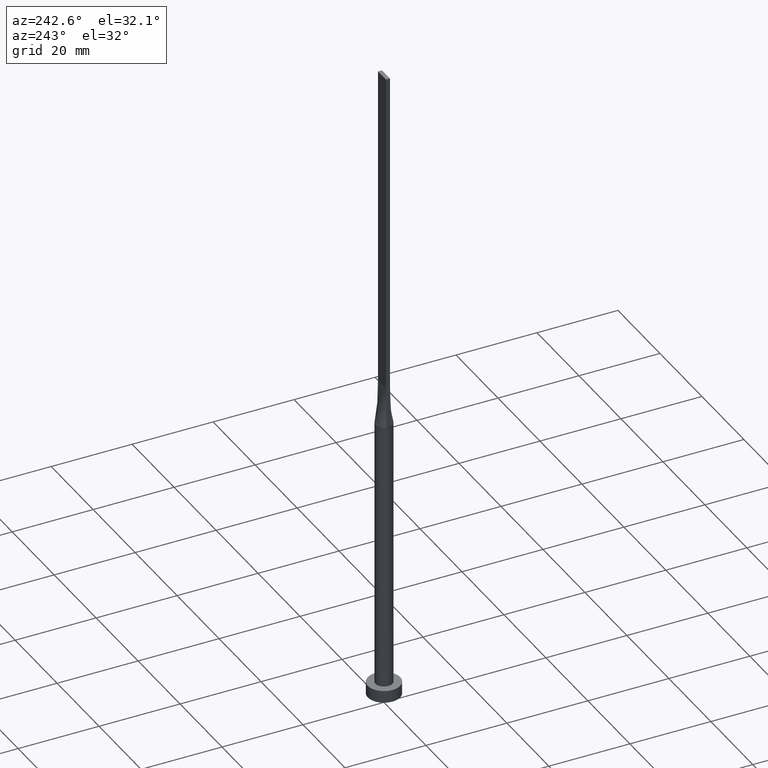
[diagram: clean part render]
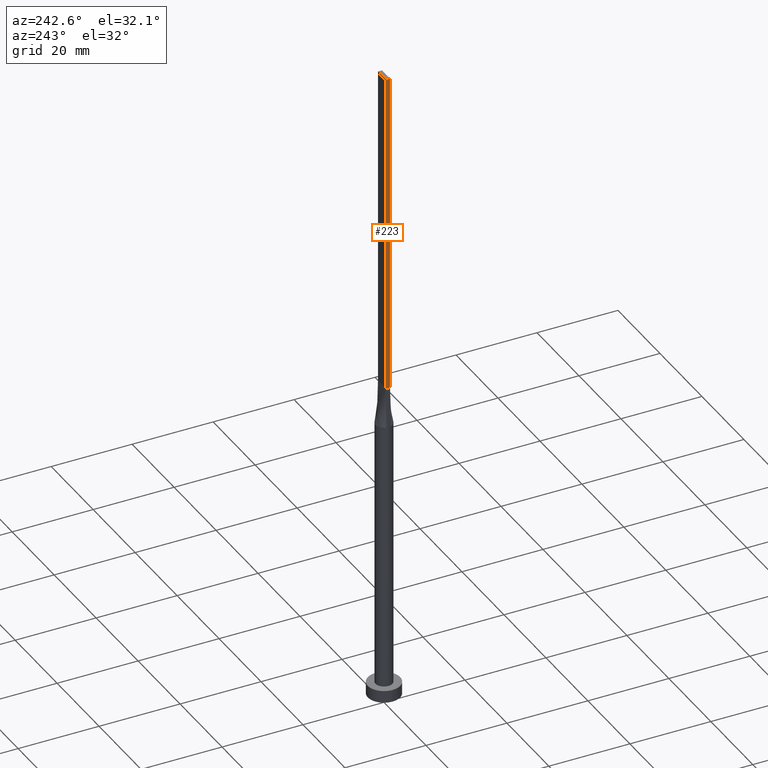
[diagram: same view with one face highlighted and labeled with its STEP entity id]
A machine part, auxiliary view. The second image highlights one B-rep face of the part: STEP entity #223.
In plain terms, the highlighted planar face has unit normal (1, -0, 0).
Its self-contained STEP definition (entity closure, byte-faithful):
#11 = DIRECTION ( 'NONE',  ( 2.168404344971009361E-16, 1.000000000000000000, 0.000000000000000000 ) ) ;
#22 = ORIENTED_EDGE ( 'NONE', *, *, #104, .T. ) ;
#42 = CARTESIAN_POINT ( 'NONE',  ( -1.899999999999999689, 0.5000000000000002220, 160.0000000000000000 ) ) ;
#45 = PLANE ( 'NONE',  #308 ) ;
#81 = LINE ( 'NONE', #42, #409 ) ;
#86 = LINE ( 'NONE', #498, #397 ) ;
#104 = EDGE_CURVE ( 'NONE', #307, #465, #145, .T. ) ;
#145 = LINE ( 'NONE', #556, #478 ) ;
#148 = DIRECTION ( 'NONE',  ( -2.168404344971009361E-16, -1.000000000000000000, 0.000000000000000000 ) ) ;
#170 = DIRECTION ( 'NONE',  ( -2.168404344971009361E-16, -1.000000000000000000, 0.000000000000000000 ) ) ;
#216 = FACE_OUTER_BOUND ( 'NONE', #234, .T. ) ;
#221 = CARTESIAN_POINT ( 'NONE',  ( -1.899999999999999689, 0.5000000000000002220, 160.0000000000000000 ) ) ;
#223 = ADVANCED_FACE ( 'NONE', ( #216 ), #45, .F. ) ;
#234 = EDGE_LOOP ( 'NONE', ( #22, #501, #243, #516 ) ) ;
#243 = ORIENTED_EDGE ( 'NONE', *, *, #296, .F. ) ;
#265 = DIRECTION ( 'NONE',  ( -0.000000000000000000, -0.000000000000000000, -1.000000000000000000 ) ) ;
#268 = CARTESIAN_POINT ( 'NONE',  ( -1.899999999999999689, 0.5000000000000002220, 80.00000000000000000 ) ) ;
#278 = CARTESIAN_POINT ( 'NONE',  ( -1.899999999999999911, -0.4999999999999995559, 80.00000000000000000 ) ) ;
#296 = EDGE_CURVE ( 'NONE', #425, #481, #81, .T. ) ;
#307 = VERTEX_POINT ( 'NONE', #268 ) ;
#308 = AXIS2_PLACEMENT_3D ( 'NONE', #221, #473, #11 ) ;
#309 = DIRECTION ( 'NONE',  ( -0.000000000000000000, -0.000000000000000000, -1.000000000000000000 ) ) ;
#316 = CARTESIAN_POINT ( 'NONE',  ( -1.899999999999999689, 0.5000000000000002220, 160.0000000000000000 ) ) ;
#325 = CARTESIAN_POINT ( 'NONE',  ( -1.899999999999999911, -0.4999999999999995559, 160.0000000000000000 ) ) ;
#362 = EDGE_CURVE ( 'NONE', #425, #307, #450, .T. ) ;
#395 = EDGE_CURVE ( 'NONE', #481, #465, #86, .T. ) ;
#397 = VECTOR ( 'NONE', #265, 1000.000000000000000 ) ;
#409 = VECTOR ( 'NONE', #170, 1000.000000000000000 ) ;
#425 = VERTEX_POINT ( 'NONE', #316 ) ;
#450 = LINE ( 'NONE', #536, #561 ) ;
#465 = VERTEX_POINT ( 'NONE', #278 ) ;
#473 = DIRECTION ( 'NONE',  ( 1.000000000000000000, -2.168404344971009361E-16, 0.000000000000000000 ) ) ;
#478 = VECTOR ( 'NONE', #148, 1000.000000000000000 ) ;
#481 = VERTEX_POINT ( 'NONE', #325 ) ;
#498 = CARTESIAN_POINT ( 'NONE',  ( -1.899999999999999911, -0.4999999999999995559, 160.0000000000000000 ) ) ;
#501 = ORIENTED_EDGE ( 'NONE', *, *, #395, .F. ) ;
#516 = ORIENTED_EDGE ( 'NONE', *, *, #362, .T. ) ;
#536 = CARTESIAN_POINT ( 'NONE',  ( -1.899999999999999689, 0.5000000000000002220, 160.0000000000000000 ) ) ;
#556 = CARTESIAN_POINT ( 'NONE',  ( -1.899999999999999689, 0.5000000000000002220, 80.00000000000000000 ) ) ;
#561 = VECTOR ( 'NONE', #309, 1000.000000000000000 ) ;